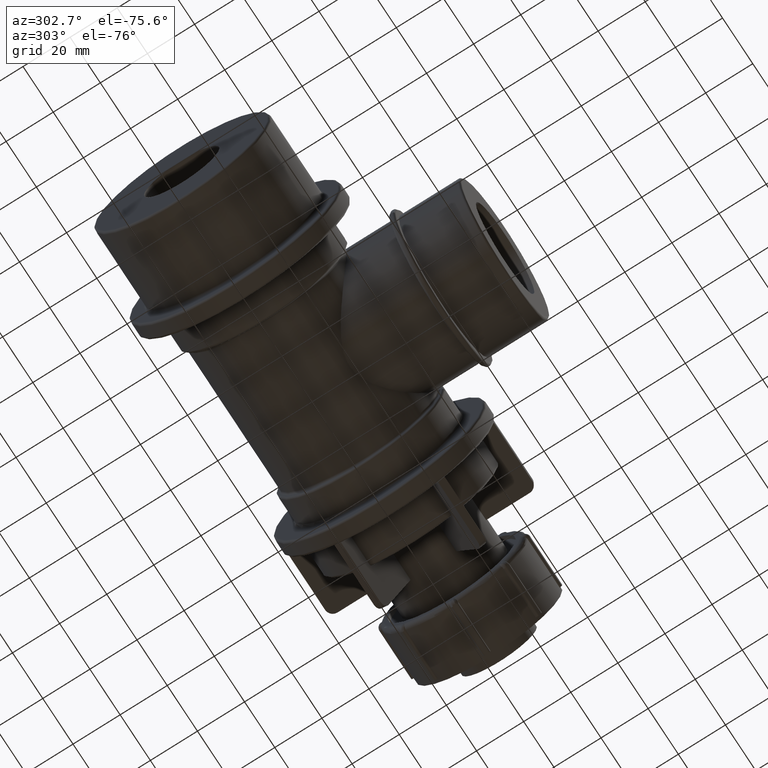
[diagram: clean part render]
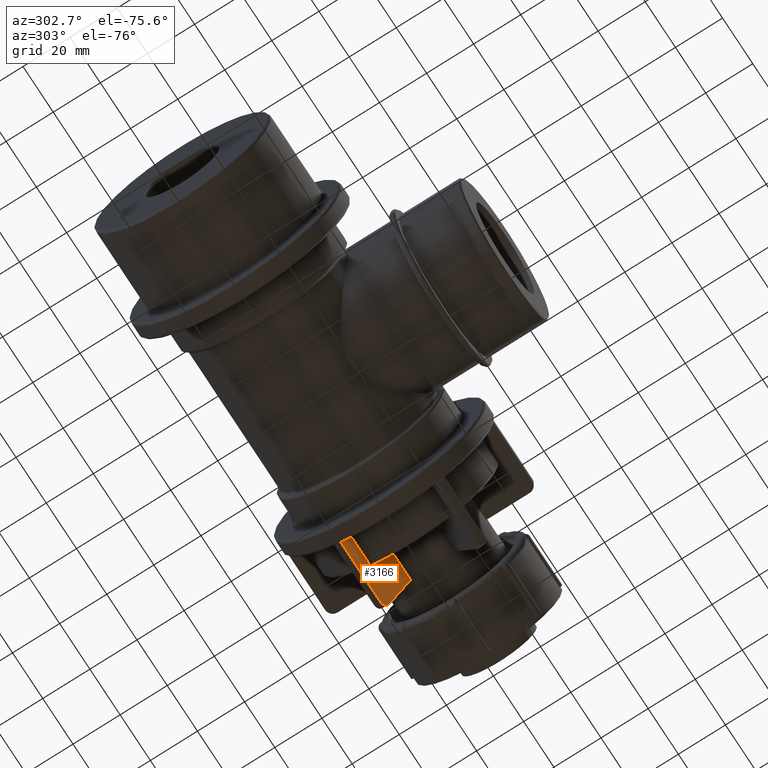
[diagram: same view with one face highlighted and labeled with its STEP entity id]
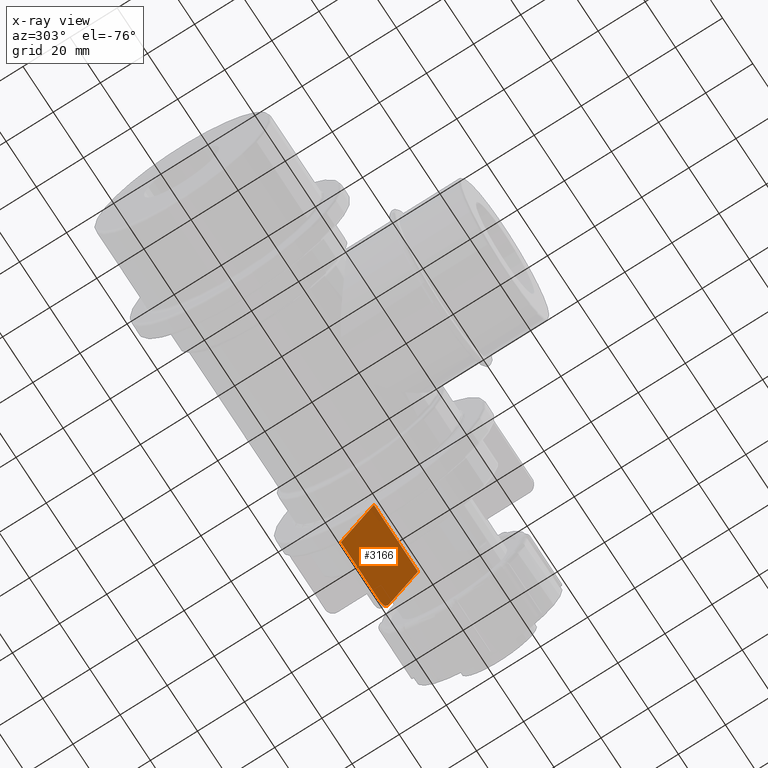
[diagram: x-ray of the same camera — body ghosted, the highlighted face saturated]
A machine part, auxiliary view. The second image highlights one B-rep face of the part: STEP entity #3166.
The next image is the same camera in x-ray: the body ghosted, the highlighted face saturated — about 2% of this face is hidden behind the body in this view.
In plain terms, the highlighted planar face has unit normal (0, -0.866, -0.5).
Its self-contained STEP definition (entity closure, byte-faithful):
#135=LINE('',#5983,#317);
#138=LINE('',#5989,#320);
#139=LINE('',#5991,#321);
#140=LINE('',#5992,#322);
#317=VECTOR('',#4340,26.0100000000001);
#320=VECTOR('',#4345,24.8);
#321=VECTOR('',#4346,29.21);
#322=VECTOR('',#4347,28.);
#473=PLANE('',#3538);
#693=CIRCLE('',#3536,3.2);
#959=FACE_OUTER_BOUND('',#1220,.T.);
#1220=EDGE_LOOP('',(#2742,#2743,#2744,#2745,#2746));
#1559=VERTEX_POINT('',#5976);
#1560=VERTEX_POINT('',#5978);
#1561=VERTEX_POINT('',#5982);
#1563=VERTEX_POINT('',#5988);
#1564=VERTEX_POINT('',#5990);
#1965=EDGE_CURVE('',#1559,#1560,#693,.T.);
#1967=EDGE_CURVE('',#1561,#1560,#135,.T.);
#1970=EDGE_CURVE('',#1559,#1563,#138,.T.);
#1971=EDGE_CURVE('',#1563,#1564,#139,.T.);
#1972=EDGE_CURVE('',#1564,#1561,#140,.T.);
#2742=ORIENTED_EDGE('',*,*,#1965,.F.);
#2743=ORIENTED_EDGE('',*,*,#1970,.T.);
#2744=ORIENTED_EDGE('',*,*,#1971,.T.);
#2745=ORIENTED_EDGE('',*,*,#1972,.T.);
#2746=ORIENTED_EDGE('',*,*,#1967,.T.);
#3166=ADVANCED_FACE('',(#959),#473,.T.);
#3536=AXIS2_PLACEMENT_3D('',#5979,#4335,#4336);
#3538=AXIS2_PLACEMENT_3D('',#5987,#4343,#4344);
#4335=DIRECTION('center_axis',(0.,0.866025403784439,0.499999999999999));
#4336=DIRECTION('ref_axis',(0.707106781186549,0.353553390593272,-0.612372435695793));
#4340=DIRECTION('',(1.,0.,0.));
#4343=DIRECTION('center_axis',(0.,-0.866025403784439,-0.499999999999999));
#4344=DIRECTION('ref_axis',(-1.,0.,0.));
#4345=DIRECTION('',(8.26212483441977E-16,-0.499999999999999,0.866025403784439));
#4346=DIRECTION('',(-1.,-7.60166398237012E-17,1.31664682395314E-16));
#4347=DIRECTION('',(0.,0.499999999999999,-0.866025403784439));
#5976=CARTESIAN_POINT('',(80.41,19.0143593539449,-36.1338364744051));
#5978=CARTESIAN_POINT('',(77.2100000000001,20.6143593539449,-38.9051177665153));
#5979=CARTESIAN_POINT('Origin',(77.2100000000001,19.0143593539449,-36.1338364744051));
#5982=CARTESIAN_POINT('',(51.2,20.6143593539449,-38.9051177665153));
#5983=CARTESIAN_POINT('',(80.41,20.6143593539449,-38.9051177665153));
#5987=CARTESIAN_POINT('Origin',(65.805,13.6143593539449,-26.7807621135332));
#5988=CARTESIAN_POINT('',(80.41,6.61435935394489,-14.656406460551));
#5989=CARTESIAN_POINT('',(80.41,9.86435935394488,-20.2855715851499));
#5990=CARTESIAN_POINT('',(51.2,6.61435935394489,-14.656406460551));
#5991=CARTESIAN_POINT('',(51.2,6.61435935394489,-14.656406460551));
#5992=CARTESIAN_POINT('',(51.2,20.6143593539449,-38.9051177665153));